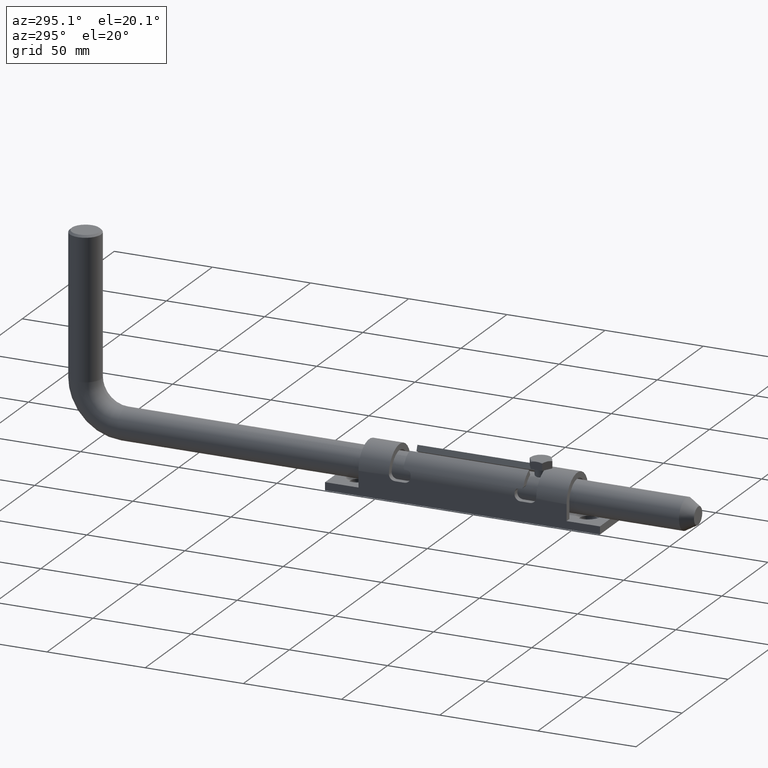
[diagram: clean part render]
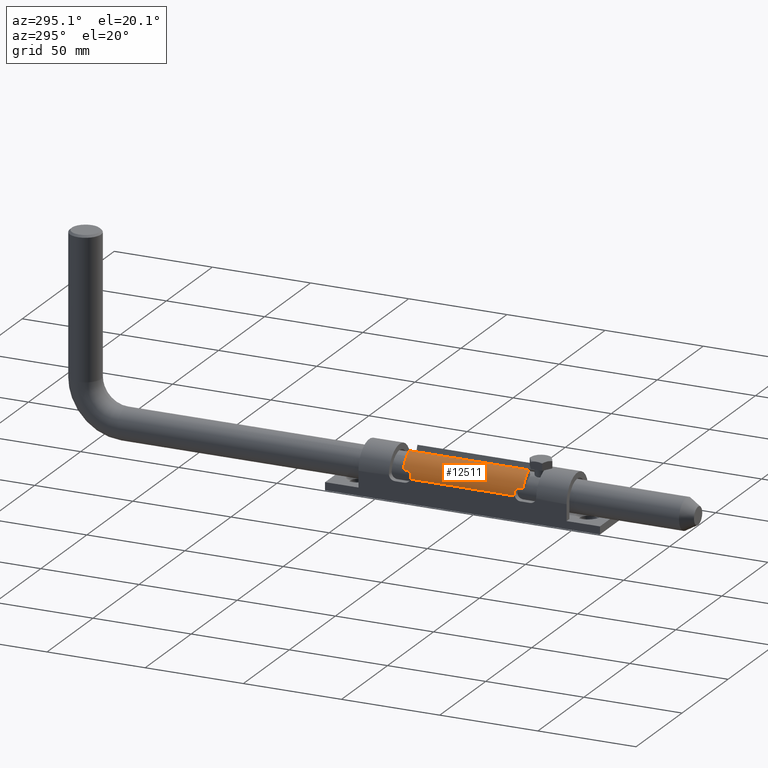
[diagram: same view with one face highlighted and labeled with its STEP entity id]
A machine part, auxiliary view. The second image highlights one B-rep face of the part: STEP entity #12511.
In plain terms, the highlighted cylindrical surface (edge-blend (fillet) strip) has radius 11.75 mm, axis along (-0, -1, -0).
Its self-contained STEP definition (entity closure, byte-faithful):
#115 = EDGE_CURVE ( 'NONE', #2419, #16618, #4718, .T. ) ;
#136 = AXIS2_PLACEMENT_3D ( 'NONE', #10747, #6666, #2458 ) ;
#584 = CARTESIAN_POINT ( 'NONE',  ( -10.80248855473622172, 30.49999999999999289, 14.87466418244832234 ) ) ;
#901 = CARTESIAN_POINT ( 'NONE',  ( -11.34329456824893612, -26.98852508018998009, 13.31615569020850209 ) ) ;
#948 = DIRECTION ( 'NONE',  ( 0.000000000000000000, -2.952720810173288619E-16, 1.000000000000000000 ) ) ;
#962 = CARTESIAN_POINT ( 'NONE',  ( -11.13552872566004659, -29.49999999999999289, 13.99999999999999822 ) ) ;
#1134 = CARTESIAN_POINT ( 'NONE',  ( -10.80243863403154059, -30.50000000000000000, 14.87477713032986948 ) ) ;
#1162 = CARTESIAN_POINT ( 'NONE',  ( -11.75000000000001066, 53.00000000000000000, 10.25000000000000888 ) ) ;
#1344 = ORIENTED_EDGE ( 'NONE', *, *, #17188, .T. ) ;
#1432 = CYLINDRICAL_SURFACE ( 'NONE', #8070, 11.75000000000000000 ) ;
#1609 = B_SPLINE_CURVE_WITH_KNOTS ( 'NONE', 3,
 ( #12062, #14745, #6345, #10526, #2185, #3695, #17541, #16147, #901, #10587, #2240, #12118, #7817, #5090, #14857, #12007 ),
 .UNSPECIFIED., .F., .F.,
 ( 4, 2, 2, 2, 2, 2, 2, 4 ),
 ( 0.000000000000000000, 0.0003957701966578873898, 0.0007915403933157747797, 0.001187310589973662170, 0.001583080786631549559, 0.001978850983289436732, 0.002374621179947324339, 0.003166161573263086976 ),
 .UNSPECIFIED. ) ;
#2004 = DIRECTION ( 'NONE',  ( 0.000000000000000000, 2.952720810173288619E-16, 1.000000000000000000 ) ) ;
#2005 = CARTESIAN_POINT ( 'NONE',  ( -11.50389469392595565, 26.60257991368171204, 12.64538546254975238 ) ) ;
#2116 = VECTOR ( 'NONE', #7155, 1000.000000000000000 ) ;
#2121 = CARTESIAN_POINT ( 'NONE',  ( -11.26698871150967740, 27.27345971673130620, 13.58516332085982903 ) ) ;
#2153 = VERTEX_POINT ( 'NONE', #4578 ) ;
#2185 = CARTESIAN_POINT ( 'NONE',  ( -11.50439510773996332, -26.60171663789595797, 12.64302748285285283 ) ) ;
#2240 = CARTESIAN_POINT ( 'NONE',  ( -11.26757189815684512, -27.27091627975871191, 13.58319742900935978 ) ) ;
#2286 = B_SPLINE_CURVE_WITH_KNOTS ( 'NONE', 3,
 ( #962, #8047, #17819, #3757, #10710, #9463, #5152, #7934, #1134, #14920 ),
 .UNSPECIFIED., .F., .F.,
 ( 4, 2, 2, 2, 4 ),
 ( 3.469446951953614189E-18, 0.0004055422544884937559, 0.0008110845089769840423, 0.001216626763465474383, 0.001622169017953964615 ),
 .UNSPECIFIED. ) ;
#2315 = FACE_OUTER_BOUND ( 'NONE', #7666, .T. ) ;
#2391 = CARTESIAN_POINT ( 'NONE',  ( -11.13552872566004659, -28.50000000000000355, 13.99999999999999822 ) ) ;
#2419 = VERTEX_POINT ( 'NONE', #2391 ) ;
#2458 = DIRECTION ( 'NONE',  ( 0.000000000000000000, 0.000000000000000000, 1.000000000000000000 ) ) ;
#2470 = CARTESIAN_POINT ( 'NONE',  ( -11.13552872566004659, 28.50000000000000355, 13.99999999999999822 ) ) ;
#2509 = ORIENTED_EDGE ( 'NONE', *, *, #16103, .T. ) ;
#2677 = CARTESIAN_POINT ( 'NONE',  ( -11.74227057835120114, 26.50000000000000355, 10.74623007730182067 ) ) ;
#3200 = VERTEX_POINT ( 'NONE', #9022 ) ;
#3278 = CARTESIAN_POINT ( 'NONE',  ( -11.42534690570260913, 26.75095908996399174, 13.00387121283509373 ) ) ;
#3385 = CARTESIAN_POINT ( 'NONE',  ( -10.74709263010234217, 30.49999999999999645, 15.00000000000000000 ) ) ;
#3508 = CARTESIAN_POINT ( 'NONE',  ( -10.95013899435189941, 30.38274707733845759, 14.51302828820771929 ) ) ;
#3695 = CARTESIAN_POINT ( 'NONE',  ( -11.45167254714487193, -26.70114812111377134, 12.88379634779320959 ) ) ;
#3743 = CARTESIAN_POINT ( 'NONE',  ( 0.000000000000000000, -30.49999999999999289, 10.25000000000000888 ) ) ;
#3757 = CARTESIAN_POINT ( 'NONE',  ( -11.08941230203073403, -30.01890289527550948, 14.13466171472503063 ) ) ;
#3795 = DIRECTION ( 'NONE',  ( 0.000000000000000000, 1.000000000000000000, 2.478176394252582127E-16 ) ) ;
#3957 = ORIENTED_EDGE ( 'NONE', *, *, #9516, .T. ) ;
#4079 = EDGE_CURVE ( 'NONE', #9047, #3200, #13474, .T. ) ;
#4363 = CARTESIAN_POINT ( 'NONE',  ( -11.13552872566004659, 28.50000000000000355, 13.99999999999999822 ) ) ;
#4578 = CARTESIAN_POINT ( 'NONE',  ( -11.75000000000001066, -26.59526249034443168, 10.25000000000000888 ) ) ;
#4658 = CARTESIAN_POINT ( 'NONE',  ( -11.06202042103216421, 30.13072019740466700, 14.21288694703097732 ) ) ;
#4704 = VECTOR ( 'NONE', #15013, 1000.000000000000000 ) ;
#4718 = LINE ( 'NONE', #14618, #12796 ) ;
#4800 = CARTESIAN_POINT ( 'NONE',  ( -11.20303585374441724, 27.60546706920536053, 13.79363403697448121 ) ) ;
#4861 = CARTESIAN_POINT ( 'NONE',  ( -11.61895003862225195, 26.50000000000000355, 12.00000000000000355 ) ) ;
#4917 = CARTESIAN_POINT ( 'NONE',  ( -11.15733099157518460, 27.97637431237724215, 13.93472726953474528 ) ) ;
#5090 = CARTESIAN_POINT ( 'NONE',  ( -11.15432320927462051, -27.96664563951162563, 13.94525466406932779 ) ) ;
#5136 = LINE ( 'NONE', #1162, #4704 ) ;
#5152 = CARTESIAN_POINT ( 'NONE',  ( -10.95004130770548656, -30.38272928398290418, 14.51324893938796734 ) ) ;
#5259 = CARTESIAN_POINT ( 'NONE',  ( -11.72603939955857477, 26.50000000000000355, 10.99999999999999645 ) ) ;
#5277 = CIRCLE ( 'NONE', #12896, 11.75000000000000000 ) ;
#5401 = CARTESIAN_POINT ( 'NONE',  ( -11.75000000000000000, 26.53169037340664715, 10.49621375018322844 ) ) ;
#5536 = ORIENTED_EDGE ( 'NONE', *, *, #115, .T. ) ;
#5585 = DIRECTION ( 'NONE',  ( 0.000000000000000000, 1.000000000000000000, 0.000000000000000000 ) ) ;
#5785 = CARTESIAN_POINT ( 'NONE',  ( 0.000000000000000000, 26.50000000000000355, 10.25000000000000888 ) ) ;
#5833 = VERTEX_POINT ( 'NONE', #14130 ) ;
#5881 = CARTESIAN_POINT ( 'NONE',  ( -11.72603939955857477, -26.50000000000000355, 10.99999999999999645 ) ) ;
#6030 = CARTESIAN_POINT ( 'NONE',  ( -11.13552872566004659, 29.63735671021618501, 13.99999999999999822 ) ) ;
#6103 = CARTESIAN_POINT ( 'NONE',  ( -11.59902278527208175, 26.50000000000000000, 12.13230500633290276 ) ) ;
#6224 = DIRECTION ( 'NONE',  ( -0.000000000000000000, -1.000000000000000000, -0.000000000000000000 ) ) ;
#6345 = CARTESIAN_POINT ( 'NONE',  ( -11.57715483953493241, -26.51300874366730653, 12.26215338081581230 ) ) ;
#6591 = CARTESIAN_POINT ( 'NONE',  ( -11.74999999999999645, -26.53169037340664715, 10.49621375018322844 ) ) ;
#6663 = CARTESIAN_POINT ( 'NONE',  ( -4.364285714285710327, 30.49999999999999289, 21.15942300051115765 ) ) ;
#6666 = DIRECTION ( 'NONE',  ( 0.000000000000000000, 1.000000000000000000, -0.000000000000000000 ) ) ;
#6697 = CARTESIAN_POINT ( 'NONE',  ( -4.364285714285712103, -30.50000000000000000, 21.15942300051115765 ) ) ;
#6882 = AXIS2_PLACEMENT_3D ( 'NONE', #14559, #13096, #2004 ) ;
#7155 = DIRECTION ( 'NONE',  ( -0.000000000000000000, 1.000000000000000000, -0.000000000000000000 ) ) ;
#7308 = EDGE_CURVE ( 'NONE', #5833, #14058, #15849, .T. ) ;
#7531 = EDGE_CURVE ( 'NONE', #10532, #3200, #12134, .T. ) ;
#7666 = EDGE_LOOP ( 'NONE', ( #10510, #10090, #16160, #1344, #12037, #3957, #9279, #16178, #10233, #10975, #5536, #2509, #11051, #17193 ) ) ;
#7817 = CARTESIAN_POINT ( 'NONE',  ( -11.20316563356050032, -27.60474580410723178, 13.79322072546027123 ) ) ;
#7934 = CARTESIAN_POINT ( 'NONE',  ( -10.85513292126128704, -30.47639517133146470, 14.74942056507262222 ) ) ;
#8047 = CARTESIAN_POINT ( 'NONE',  ( -11.13552872566004481, -29.63716330902627760, 13.99999999999999645 ) ) ;
#8070 = AXIS2_PLACEMENT_3D ( 'NONE', #8615, #8426, #10042 ) ;
#8132 = CARTESIAN_POINT ( 'NONE',  ( -11.72603939955857477, 26.50000000000000355, 10.99999999999999645 ) ) ;
#8426 = DIRECTION ( 'NONE',  ( -0.000000000000000000, -1.000000000000000000, -0.000000000000000000 ) ) ;
#8571 = CIRCLE ( 'NONE', #136, 11.75000000000000000 ) ;
#8615 = CARTESIAN_POINT ( 'NONE',  ( 0.000000000000000000, 53.00000000000000000, 10.25000000000000888 ) ) ;
#8903 = AXIS2_PLACEMENT_3D ( 'NONE', #3743, #3795, #948 ) ;
#9022 = CARTESIAN_POINT ( 'NONE',  ( -11.13552872566004659, 29.49999999999999645, 13.99999999999999822 ) ) ;
#9039 = CARTESIAN_POINT ( 'NONE',  ( -10.99202630375708800, 30.31304923404685780, 14.40308638096938765 ) ) ;
#9047 = VERTEX_POINT ( 'NONE', #9258 ) ;
#9130 = EDGE_CURVE ( 'NONE', #2153, #13918, #9594, .T. ) ;
#9258 = CARTESIAN_POINT ( 'NONE',  ( -10.74709263010234217, 30.49999999999999645, 15.00000000000000000 ) ) ;
#9279 = ORIENTED_EDGE ( 'NONE', *, *, #12472, .T. ) ;
#9400 = B_SPLINE_CURVE_WITH_KNOTS ( 'NONE', 3,
 ( #4363, #13225, #10467, #4917, #13040, #4800, #10231, #2121, #10346, #16094, #3278, #2005, #15971, #11650, #6103, #4861 ),
 .UNSPECIFIED., .F., .F.,
 ( 4, 2, 2, 2, 2, 2, 2, 4 ),
 ( 0.000000000000000000, 0.0003957686090937857261, 0.0007915372181875714522, 0.001187305827281357395, 0.001583074436375142904, 0.002374611654562726066, 0.002770380263656515695, 0.003166148872750304891 ),
 .UNSPECIFIED. ) ;
#9463 = CARTESIAN_POINT ( 'NONE',  ( -10.99256804818688593, -30.31182463941655314, 14.40163208356755575 ) ) ;
#9498 = LINE ( 'NONE', #12505, #2116 ) ;
#9516 = EDGE_CURVE ( 'NONE', #11930, #10487, #13806, .T. ) ;
#9594 = B_SPLINE_CURVE_WITH_KNOTS ( 'NONE', 3,
 ( #10726, #6591, #17729, #14879 ),
 .UNSPECIFIED., .F., .F.,
 ( 4, 4 ),
 ( 0.000000000000000000, 0.0007564053492936952377 ),
 .UNSPECIFIED. ) ;
#10042 = DIRECTION ( 'NONE',  ( 0.000000000000000000, 0.000000000000000000, -1.000000000000000000 ) ) ;
#10090 = ORIENTED_EDGE ( 'NONE', *, *, #4079, .T. ) ;
#10231 = CARTESIAN_POINT ( 'NONE',  ( -11.22261991032523021, 27.49059530400067075, 13.73154439156919260 ) ) ;
#10233 = ORIENTED_EDGE ( 'NONE', *, *, #16570, .T. ) ;
#10289 = EDGE_CURVE ( 'NONE', #11930, #14903, #5277, .T. ) ;
#10346 = CARTESIAN_POINT ( 'NONE',  ( -11.29173532165434857, 27.17180854455011030, 13.50089602834806790 ) ) ;
#10392 = CARTESIAN_POINT ( 'NONE',  ( -10.85446202923889558, 30.47694239279664430, 14.75106745533728514 ) ) ;
#10393 = EDGE_CURVE ( 'NONE', #9047, #17975, #12711, .T. ) ;
#10467 = CARTESIAN_POINT ( 'NONE',  ( -11.14003471147411695, 28.23466370146623916, 13.98669326190536388 ) ) ;
#10487 = VERTEX_POINT ( 'NONE', #10585 ) ;
#10510 = ORIENTED_EDGE ( 'NONE', *, *, #10393, .F. ) ;
#10526 = CARTESIAN_POINT ( 'NONE',  ( -11.52998736952526215, -26.56358280330073995, 12.51686273626868484 ) ) ;
#10532 = VERTEX_POINT ( 'NONE', #2470 ) ;
#10585 = CARTESIAN_POINT ( 'NONE',  ( -11.75000000000001066, 26.59526249034443524, 10.25000000000000888 ) ) ;
#10587 = CARTESIAN_POINT ( 'NONE',  ( -11.29189391751296867, -27.17117624654971308, 13.50034984798519133 ) ) ;
#10710 = CARTESIAN_POINT ( 'NONE',  ( -11.06197737069353337, -30.13064438921799493, 14.21298598301721405 ) ) ;
#10726 = CARTESIAN_POINT ( 'NONE',  ( -11.75000000000001066, -26.59526249034443168, 10.25000000000000888 ) ) ;
#10747 = CARTESIAN_POINT ( 'NONE',  ( 0.000000000000000000, -26.50000000000000355, 10.25000000000000888 ) ) ;
#10975 = ORIENTED_EDGE ( 'NONE', *, *, #17402, .T. ) ;
#11051 = ORIENTED_EDGE ( 'NONE', *, *, #7308, .T. ) ;
#11286 = CARTESIAN_POINT ( 'NONE',  ( -11.13552872566004659, 53.00000000000000000, 13.99999999999999822 ) ) ;
#11650 = CARTESIAN_POINT ( 'NONE',  ( -11.57708641325968735, 26.51299897861877142, 12.26261549652704197 ) ) ;
#11930 = VERTEX_POINT ( 'NONE', #5259 ) ;
#12007 = CARTESIAN_POINT ( 'NONE',  ( -11.13552872566004659, -28.50000000000000355, 13.99999999999999822 ) ) ;
#12037 = ORIENTED_EDGE ( 'NONE', *, *, #10289, .F. ) ;
#12062 = CARTESIAN_POINT ( 'NONE',  ( -11.61895003862225195, -26.50000000000000355, 12.00000000000000355 ) ) ;
#12118 = CARTESIAN_POINT ( 'NONE',  ( -11.22310266195586870, -27.48792953223626867, 13.72999256034946747 ) ) ;
#12134 = LINE ( 'NONE', #11286, #16281 ) ;
#12324 = CARTESIAN_POINT ( 'NONE',  ( -11.75000000000001066, 26.59526249034443524, 10.25000000000000888 ) ) ;
#12472 = EDGE_CURVE ( 'NONE', #10487, #2153, #5136, .T. ) ;
#12505 = CARTESIAN_POINT ( 'NONE',  ( -4.364285714285710327, -37.50000000000000000, 21.15942300051115765 ) ) ;
#12511 = ADVANCED_FACE ( 'NONE', ( #2315 ), #1432, .T. ) ;
#12711 = CIRCLE ( 'NONE', #6882, 11.75000000000000000 ) ;
#12796 = VECTOR ( 'NONE', #6224, 1000.000000000000000 ) ;
#12896 = AXIS2_PLACEMENT_3D ( 'NONE', #5785, #16794, #13979 ) ;
#13040 = CARTESIAN_POINT ( 'NONE',  ( -11.17034713903473531, 27.84815891167039936, 13.89536682951736246 ) ) ;
#13096 = DIRECTION ( 'NONE',  ( 0.000000000000000000, 1.000000000000000000, -2.478176394252582127E-16 ) ) ;
#13225 = CARTESIAN_POINT ( 'NONE',  ( -11.13552872566004126, 28.36611623932542514, 13.99999999999999645 ) ) ;
#13258 = CARTESIAN_POINT ( 'NONE',  ( -11.61895003862225195, 26.50000000000000355, 12.00000000000000355 ) ) ;
#13276 = CARTESIAN_POINT ( 'NONE',  ( -11.08924603064185987, 30.01970361857934222, 14.13513820097084306 ) ) ;
#13474 = B_SPLINE_CURVE_WITH_KNOTS ( 'NONE', 3,
 ( #3385, #584, #10392, #3508, #9039, #4658, #13276, #14419, #6030, #15836 ),
 .UNSPECIFIED., .F., .F.,
 ( 4, 2, 2, 2, 4 ),
 ( 0.000000000000000000, 0.0004055211236471860186, 0.0008110422472943720372, 0.001216563370941558002, 0.001622084494588744074 ),
 .UNSPECIFIED. ) ;
#13708 = CARTESIAN_POINT ( 'NONE',  ( -11.13552872566004659, -29.49999999999999289, 13.99999999999999822 ) ) ;
#13789 = EDGE_CURVE ( 'NONE', #14058, #17975, #9498, .T. ) ;
#13806 = B_SPLINE_CURVE_WITH_KNOTS ( 'NONE', 3,
 ( #8132, #2677, #5401, #12324 ),
 .UNSPECIFIED., .F., .F.,
 ( 4, 4 ),
 ( 0.000000000000000000, 0.0007564053492936953461 ),
 .UNSPECIFIED. ) ;
#13918 = VERTEX_POINT ( 'NONE', #5881 ) ;
#13979 = DIRECTION ( 'NONE',  ( 0.000000000000000000, 0.000000000000000000, 1.000000000000000000 ) ) ;
#14058 = VERTEX_POINT ( 'NONE', #6697 ) ;
#14130 = CARTESIAN_POINT ( 'NONE',  ( -10.74709263010234217, -30.49999999999999289, 15.00000000000000000 ) ) ;
#14419 = CARTESIAN_POINT ( 'NONE',  ( -11.12600533040534145, 29.77280910373476530, 14.02858197695129761 ) ) ;
#14559 = CARTESIAN_POINT ( 'NONE',  ( 0.000000000000000000, 30.49999999999999645, 10.25000000000000888 ) ) ;
#14618 = CARTESIAN_POINT ( 'NONE',  ( -11.13552872566004659, 53.00000000000000000, 13.99999999999999822 ) ) ;
#14745 = CARTESIAN_POINT ( 'NONE',  ( -11.59901283687334939, -26.50000000000001776, 12.13237105773170299 ) ) ;
#14857 = CARTESIAN_POINT ( 'NONE',  ( -11.13552872566004837, -28.23211319357095306, 14.00000000000000533 ) ) ;
#14879 = CARTESIAN_POINT ( 'NONE',  ( -11.72603939955857477, -26.50000000000000355, 10.99999999999999645 ) ) ;
#14903 = VERTEX_POINT ( 'NONE', #13258 ) ;
#14920 = CARTESIAN_POINT ( 'NONE',  ( -10.74709263010234217, -30.49999999999999289, 15.00000000000000000 ) ) ;
#15013 = DIRECTION ( 'NONE',  ( -0.000000000000000000, -1.000000000000000000, -0.000000000000000000 ) ) ;
#15359 = VERTEX_POINT ( 'NONE', #17287 ) ;
#15836 = CARTESIAN_POINT ( 'NONE',  ( -11.13552872566004659, 29.49999999999999645, 13.99999999999999822 ) ) ;
#15849 = CIRCLE ( 'NONE', #8903, 11.75000000000000000 ) ;
#15971 = CARTESIAN_POINT ( 'NONE',  ( -11.52949978258607544, 26.56418971598887779, 12.51940206228215935 ) ) ;
#16094 = CARTESIAN_POINT ( 'NONE',  ( -11.36872337777694675, 26.89802764652331390, 13.22507563017994769 ) ) ;
#16103 = EDGE_CURVE ( 'NONE', #16618, #5833, #2286, .T. ) ;
#16147 = CARTESIAN_POINT ( 'NONE',  ( -11.37062582054269200, -26.90512774511161709, 13.21373931045854633 ) ) ;
#16160 = ORIENTED_EDGE ( 'NONE', *, *, #7531, .F. ) ;
#16178 = ORIENTED_EDGE ( 'NONE', *, *, #9130, .T. ) ;
#16281 = VECTOR ( 'NONE', #5585, 1000.000000000000000 ) ;
#16570 = EDGE_CURVE ( 'NONE', #13918, #15359, #8571, .T. ) ;
#16618 = VERTEX_POINT ( 'NONE', #13708 ) ;
#16794 = DIRECTION ( 'NONE',  ( 0.000000000000000000, 1.000000000000000000, -0.000000000000000000 ) ) ;
#17188 = EDGE_CURVE ( 'NONE', #10532, #14903, #9400, .T. ) ;
#17193 = ORIENTED_EDGE ( 'NONE', *, *, #13789, .T. ) ;
#17287 = CARTESIAN_POINT ( 'NONE',  ( -11.61895003862225195, -26.50000000000000355, 12.00000000000000355 ) ) ;
#17402 = EDGE_CURVE ( 'NONE', #15359, #2419, #1609, .T. ) ;
#17541 = CARTESIAN_POINT ( 'NONE',  ( -11.42471616940882662, -26.76188231271256512, 12.99786147751265197 ) ) ;
#17729 = CARTESIAN_POINT ( 'NONE',  ( -11.74227057835120114, -26.50000000000000355, 10.74623007730182067 ) ) ;
#17819 = CARTESIAN_POINT ( 'NONE',  ( -11.12608405116758092, -29.77196221652404517, 14.02834825401728125 ) ) ;
#17975 = VERTEX_POINT ( 'NONE', #6663 ) ;